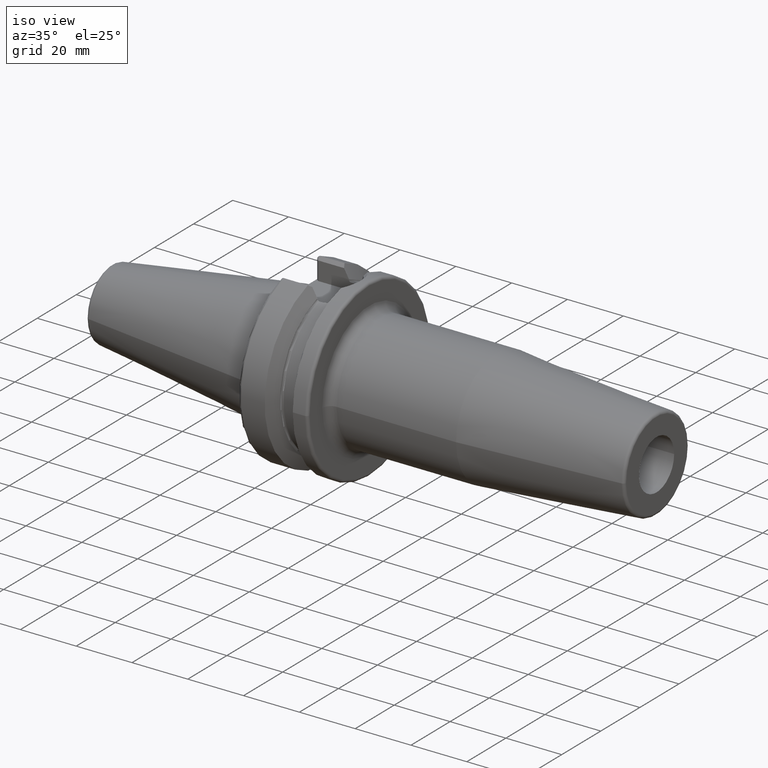
[diagram: clean part render]
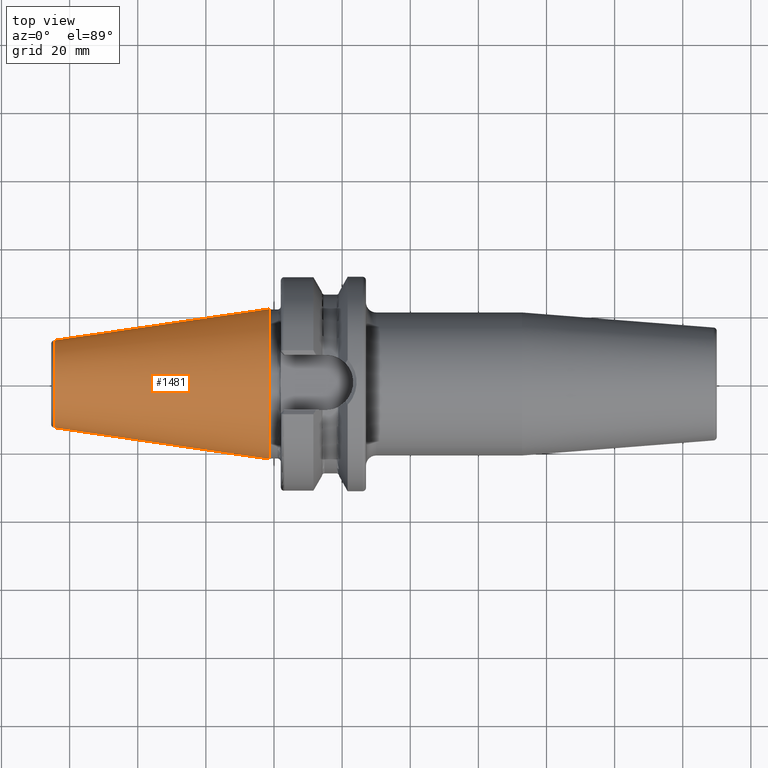
[diagram: tour spotlight — one face highlighted and labeled with its STEP entity id]
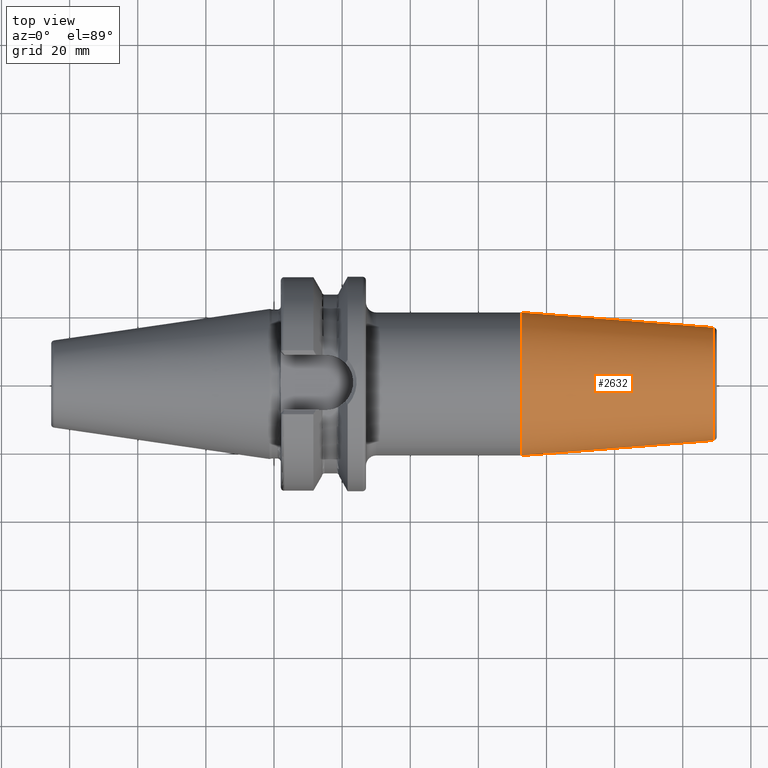
[diagram: tour spotlight — one face highlighted and labeled with its STEP entity id]
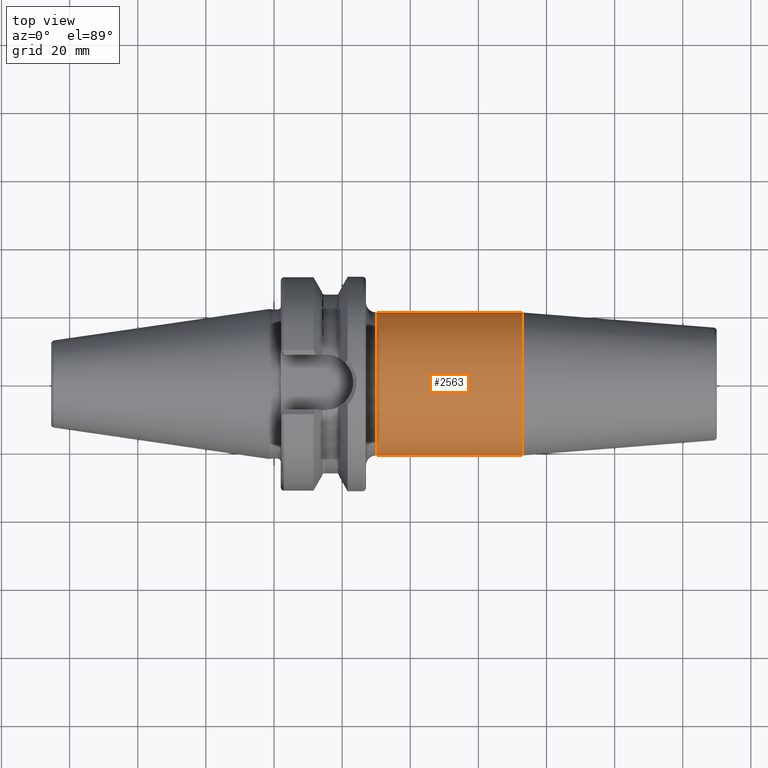
[diagram: tour spotlight — one face highlighted and labeled with its STEP entity id]
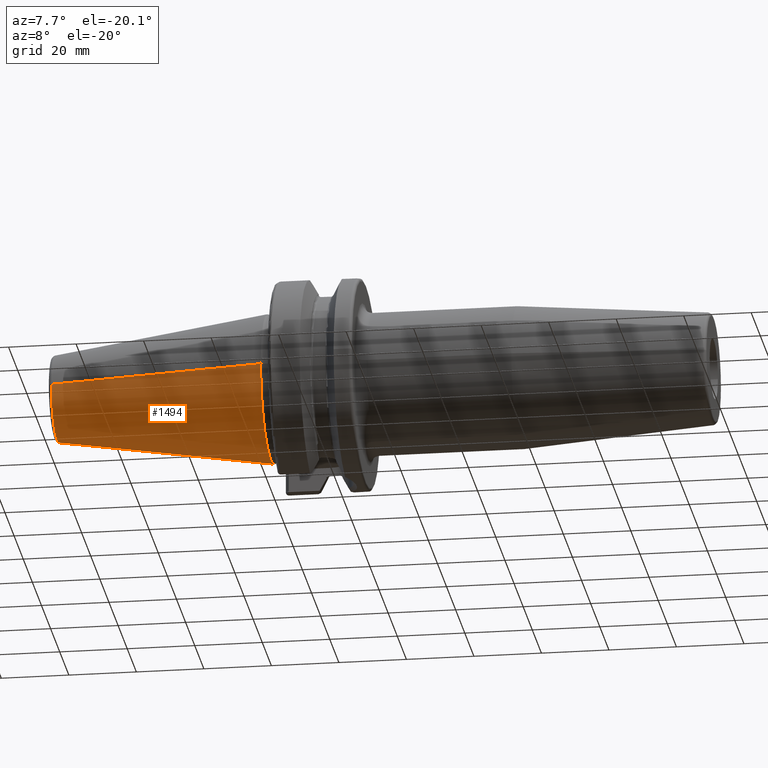
[diagram: tour spotlight — one face highlighted and labeled with its STEP entity id]
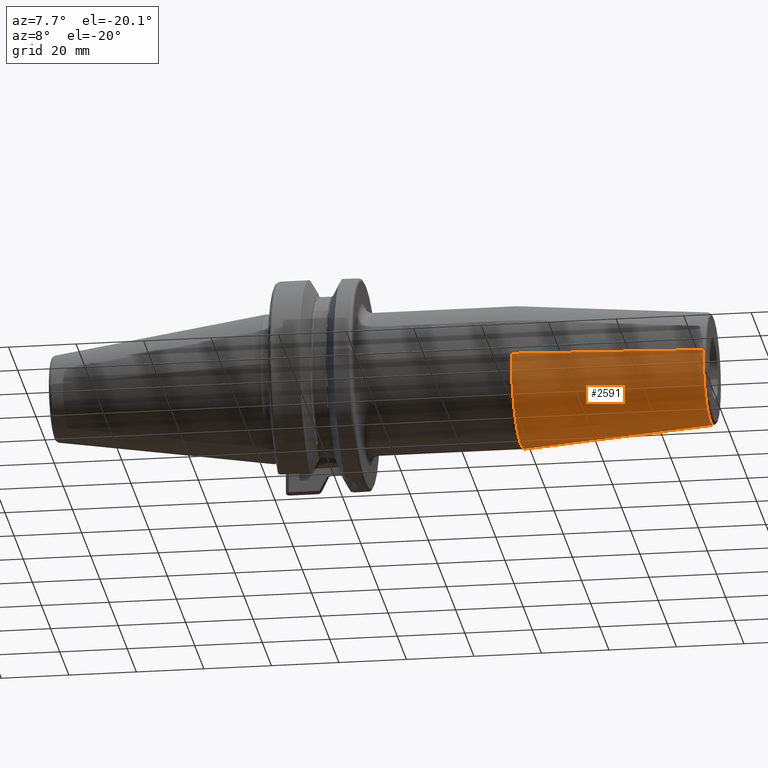
[diagram: tour spotlight — one face highlighted and labeled with its STEP entity id]
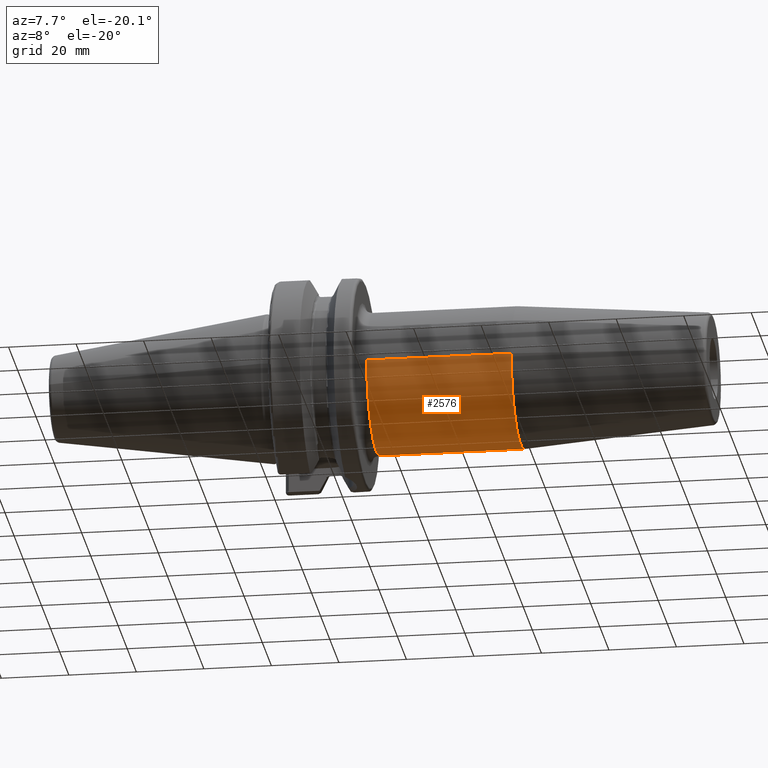
[diagram: tour spotlight — one face highlighted and labeled with its STEP entity id]
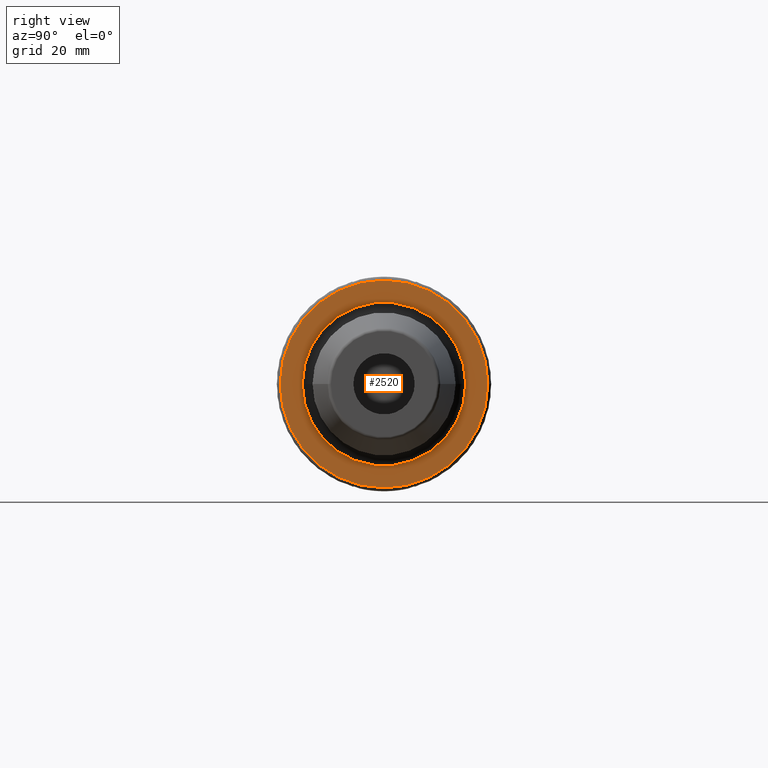
[diagram: tour spotlight — one face highlighted and labeled with its STEP entity id]
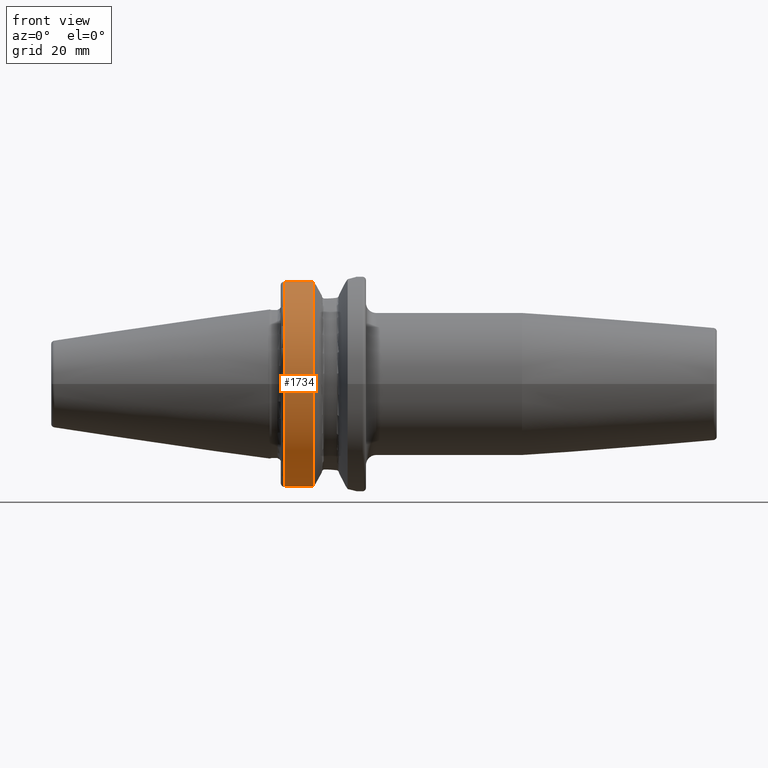
[diagram: tour spotlight — one face highlighted and labeled with its STEP entity id]
A machine part: a face-by-face anatomy tour. The part has 96 B-rep faces; the first image is the clean iso view, then the 8 largest visible faces are spotlighted one at a time (largest first), each with its STEP entity span.

Face 1 — top view, entity #1481. In plain terms, the highlighted conical surface has half-angle 8.298 deg.
Definition (entity closure, byte-faithful):
#37=CARTESIAN_POINT('',(-6.454431866917E1,0.E0,0.E0));
#38=DIRECTION('',(1.E0,0.E0,0.E0));
#39=DIRECTION('',(0.E0,1.E0,0.E0));
#40=AXIS2_PLACEMENT_3D('',#37,#38,#39);
#42=CARTESIAN_POINT('',(-1.266732031557E0,0.E0,0.E0));
#43=DIRECTION('',(1.E0,0.E0,0.E0));
#44=DIRECTION('',(0.E0,1.E0,0.E0));
#45=AXIS2_PLACEMENT_3D('',#42,#43,#44);
#47=DIRECTION('',(-9.895312636440E-1,-1.443186691705E-1,0.E0));
#48=VECTOR('',#47,6.394703124850E1);
#49=CARTESIAN_POINT('',(-1.266732031557E0,2.204025284980E1,0.E0));
#50=LINE('',#49,#48);
#51=DIRECTION('',(-9.895312636440E-1,1.443186691705E-1,0.E0));
#52=VECTOR('',#51,6.394703124850E1);
#53=CARTESIAN_POINT('',(-1.266732031557E0,-2.204025284980E1,0.E0));
#54=LINE('',#53,#52);
#1170=CARTESIAN_POINT('',(-6.454431866917E1,1.281150240261E1,0.E0));
#1172=VERTEX_POINT('',#1170);
#1174=CARTESIAN_POINT('',(-6.454431866917E1,-1.281150240261E1,0.E0));
#1176=VERTEX_POINT('',#1174);
#1389=CARTESIAN_POINT('',(-1.266732031557E0,2.204025284980E1,0.E0));
#1390=VERTEX_POINT('',#1389);
#1391=CARTESIAN_POINT('',(-1.266732031557E0,-2.204025284980E1,0.E0));
#1392=VERTEX_POINT('',#1391);
#1467=CARTESIAN_POINT('',(-3.290552535036E1,0.E0,0.E0));
#1468=DIRECTION('',(1.E0,0.E0,0.E0));
#1469=DIRECTION('',(0.E0,-1.E0,0.E0));
#1470=AXIS2_PLACEMENT_3D('',#1467,#1468,#1469);
#1471=CONICAL_SURFACE('',#1470,1.742587762621E1,8.297826828206E0);
#1473=ORIENTED_EDGE('',*,*,#1472,.F.);
#1475=ORIENTED_EDGE('',*,*,#1474,.T.);
#1477=ORIENTED_EDGE('',*,*,#1476,.T.);
#1478=ORIENTED_EDGE('',*,*,#1460,.F.);
#1479=EDGE_LOOP('',(#1473,#1475,#1477,#1478));
#1480=FACE_OUTER_BOUND('',#1479,.F.);
#1481=ADVANCED_FACE('',(#1480),#1471,.T.);
#41=CIRCLE('',#40,1.281150240261E1);
#46=CIRCLE('',#45,2.204025284980E1);
#1460=EDGE_CURVE('',#1172,#1176,#41,.T.);
#1472=EDGE_CURVE('',#1390,#1172,#50,.T.);
#1474=EDGE_CURVE('',#1390,#1392,#46,.T.);
#1476=EDGE_CURVE('',#1392,#1176,#54,.T.);

Face 2 — top view, entity #2632. In plain terms, the highlighted conical surface has half-angle 4.5 deg.
Definition (entity closure, byte-faithful):
#861=CARTESIAN_POINT('',(7.282207868721E1,0.E0,0.E0));
#862=DIRECTION('',(1.E0,0.E0,0.E0));
#863=DIRECTION('',(0.E0,1.E0,0.E0));
#864=AXIS2_PLACEMENT_3D('',#861,#862,#863);
#889=DIRECTION('',(-9.969173337331E-1,7.845909572785E-2,6.390930172239E-14));
#890=VECTOR('',#889,5.643033630266E1);
#891=CARTESIAN_POINT('',(1.290784590957E2,1.657252684207E1,
-3.603851630785E-12));
#892=LINE('',#891,#890);
#893=DIRECTION('',(-9.969173337331E-1,-7.845909572785E-2,-6.390031032996E-14));
#894=VECTOR('',#893,5.643033630266E1);
#895=CARTESIAN_POINT('',(1.290784590957E2,-1.657252684207E1,
3.603344243486E-12));
#896=LINE('',#895,#894);
#907=CARTESIAN_POINT('',(1.290784590957E2,0.E0,0.E0));
#908=DIRECTION('',(-1.E0,0.E0,0.E0));
#909=DIRECTION('',(0.E0,-1.E0,0.E0));
#910=AXIS2_PLACEMENT_3D('',#907,#908,#909);
#1409=CARTESIAN_POINT('',(7.282207868721E1,2.1E1,0.E0));
#1410=VERTEX_POINT('',#1409);
#1411=CARTESIAN_POINT('',(7.282207868721E1,-2.1E1,0.E0));
#1412=VERTEX_POINT('',#1411);
#1413=CARTESIAN_POINT('',(1.290784590957E2,1.657252684207E1,0.E0));
#1414=CARTESIAN_POINT('',(1.290784590957E2,-1.657252684207E1,0.E0));
#1415=VERTEX_POINT('',#1413);
#1416=VERTEX_POINT('',#1414);
#2621=CARTESIAN_POINT('',(1.009502688915E2,0.E0,0.E0));
#2622=DIRECTION('',(-1.E0,0.E0,0.E0));
#2623=DIRECTION('',(0.E0,1.E0,0.E0));
#2624=AXIS2_PLACEMENT_3D('',#2621,#2622,#2623);
#2625=CONICAL_SURFACE('',#2624,1.878626342104E1,4.5E0);
#2626=ORIENTED_EDGE('',*,*,#2612,.F.);
#2627=ORIENTED_EDGE('',*,*,#2587,.T.);
#2628=ORIENTED_EDGE('',*,*,#2557,.F.);
#2629=ORIENTED_EDGE('',*,*,#2584,.F.);
#2630=EDGE_LOOP('',(#2626,#2627,#2628,#2629));
#2631=FACE_OUTER_BOUND('',#2630,.F.);
#2632=ADVANCED_FACE('',(#2631),#2625,.T.);
#865=CIRCLE('',#864,2.1E1);
#911=CIRCLE('',#910,1.657252684207E1);
#2557=EDGE_CURVE('',#1410,#1412,#865,.T.);
#2584=EDGE_CURVE('',#1415,#1410,#892,.T.);
#2587=EDGE_CURVE('',#1416,#1412,#896,.T.);
#2612=EDGE_CURVE('',#1416,#1415,#911,.T.);

Face 3 — top view, entity #2563. In plain terms, the highlighted cylindrical surface (partial cylindrical patch) has radius 21 mm, axis along (1, 0, 0).
Definition (entity closure, byte-faithful):
#856=CARTESIAN_POINT('',(3.E1,0.E0,0.E0));
#857=DIRECTION('',(1.E0,0.E0,0.E0));
#858=DIRECTION('',(0.E0,1.E0,0.E0));
#859=AXIS2_PLACEMENT_3D('',#856,#857,#858);
#861=CARTESIAN_POINT('',(7.282207868721E1,0.E0,0.E0));
#862=DIRECTION('',(1.E0,0.E0,0.E0));
#863=DIRECTION('',(0.E0,1.E0,0.E0));
#864=AXIS2_PLACEMENT_3D('',#861,#862,#863);
#871=DIRECTION('',(-1.E0,0.E0,-3.121221954443E-14));
#872=VECTOR('',#871,4.282207868721E1);
#873=CARTESIAN_POINT('',(7.282207868721E1,-2.1E1,0.E0));
#874=LINE('',#873,#872);
#880=DIRECTION('',(-1.E0,0.E0,3.114081538233E-14));
#881=VECTOR('',#880,4.282207868721E1);
#882=CARTESIAN_POINT('',(7.282207868721E1,2.1E1,0.E0));
#883=LINE('',#882,#881);
#1405=CARTESIAN_POINT('',(3.E1,-2.1E1,0.E0));
#1406=CARTESIAN_POINT('',(3.E1,2.1E1,0.E0));
#1407=VERTEX_POINT('',#1405);
#1408=VERTEX_POINT('',#1406);
#1409=CARTESIAN_POINT('',(7.282207868721E1,2.1E1,0.E0));
#1410=VERTEX_POINT('',#1409);
#1411=CARTESIAN_POINT('',(7.282207868721E1,-2.1E1,0.E0));
#1412=VERTEX_POINT('',#1411);
#2549=CARTESIAN_POINT('',(2.185E1,0.E0,0.E0));
#2550=DIRECTION('',(1.E0,0.E0,0.E0));
#2551=DIRECTION('',(0.E0,-1.E0,0.E0));
#2552=AXIS2_PLACEMENT_3D('',#2549,#2550,#2551);
#2553=CYLINDRICAL_SURFACE('',#2552,2.1E1);
#2554=ORIENTED_EDGE('',*,*,#2543,.F.);
#2556=ORIENTED_EDGE('',*,*,#2555,.F.);
#2558=ORIENTED_EDGE('',*,*,#2557,.T.);
#2560=ORIENTED_EDGE('',*,*,#2559,.T.);
#2561=EDGE_LOOP('',(#2554,#2556,#2558,#2560));
#2562=FACE_OUTER_BOUND('',#2561,.F.);
#2563=ADVANCED_FACE('',(#2562),#2553,.T.);
#860=CIRCLE('',#859,2.1E1);
#865=CIRCLE('',#864,2.1E1);
#2543=EDGE_CURVE('',#1408,#1407,#860,.T.);
#2555=EDGE_CURVE('',#1410,#1408,#883,.T.);
#2557=EDGE_CURVE('',#1410,#1412,#865,.T.);
#2559=EDGE_CURVE('',#1412,#1407,#874,.T.);

Face 4 — auxiliary view, entity #1494. In plain terms, the highlighted conical surface has half-angle 8.298 deg.
Definition (entity closure, byte-faithful):
#32=CARTESIAN_POINT('',(-6.454431866917E1,0.E0,0.E0));
#33=DIRECTION('',(-1.E0,0.E0,0.E0));
#34=DIRECTION('',(0.E0,1.E0,0.E0));
#35=AXIS2_PLACEMENT_3D('',#32,#33,#34);
#47=DIRECTION('',(-9.895312636440E-1,-1.443186691705E-1,0.E0));
#48=VECTOR('',#47,6.394703124850E1);
#49=CARTESIAN_POINT('',(-1.266732031557E0,2.204025284980E1,0.E0));
#50=LINE('',#49,#48);
#51=DIRECTION('',(-9.895312636440E-1,1.443186691705E-1,0.E0));
#52=VECTOR('',#51,6.394703124850E1);
#53=CARTESIAN_POINT('',(-1.266732031557E0,-2.204025284980E1,0.E0));
#54=LINE('',#53,#52);
#55=CARTESIAN_POINT('',(-1.266732031557E0,0.E0,0.E0));
#56=DIRECTION('',(-1.E0,0.E0,0.E0));
#57=DIRECTION('',(0.E0,1.E0,0.E0));
#58=AXIS2_PLACEMENT_3D('',#55,#56,#57);
#1170=CARTESIAN_POINT('',(-6.454431866917E1,1.281150240261E1,0.E0));
#1172=VERTEX_POINT('',#1170);
#1174=CARTESIAN_POINT('',(-6.454431866917E1,-1.281150240261E1,0.E0));
#1176=VERTEX_POINT('',#1174);
#1389=CARTESIAN_POINT('',(-1.266732031557E0,2.204025284980E1,0.E0));
#1390=VERTEX_POINT('',#1389);
#1391=CARTESIAN_POINT('',(-1.266732031557E0,-2.204025284980E1,0.E0));
#1392=VERTEX_POINT('',#1391);
#1482=CARTESIAN_POINT('',(-3.290552535036E1,0.E0,0.E0));
#1483=DIRECTION('',(1.E0,0.E0,0.E0));
#1484=DIRECTION('',(0.E0,-1.E0,0.E0));
#1485=AXIS2_PLACEMENT_3D('',#1482,#1483,#1484);
#1486=CONICAL_SURFACE('',#1485,1.742587762621E1,8.297826828206E0);
#1487=ORIENTED_EDGE('',*,*,#1472,.T.);
#1488=ORIENTED_EDGE('',*,*,#1449,.T.);
#1489=ORIENTED_EDGE('',*,*,#1476,.F.);
#1491=ORIENTED_EDGE('',*,*,#1490,.F.);
#1492=EDGE_LOOP('',(#1487,#1488,#1489,#1491));
#1493=FACE_OUTER_BOUND('',#1492,.F.);
#1494=ADVANCED_FACE('',(#1493),#1486,.T.);
#36=CIRCLE('',#35,1.281150240261E1);
#59=CIRCLE('',#58,2.204025284980E1);
#1449=EDGE_CURVE('',#1172,#1176,#36,.T.);
#1472=EDGE_CURVE('',#1390,#1172,#50,.T.);
#1476=EDGE_CURVE('',#1392,#1176,#54,.T.);
#1490=EDGE_CURVE('',#1390,#1392,#59,.T.);

Face 5 — auxiliary view, entity #2591. In plain terms, the highlighted conical surface has half-angle 4.5 deg.
Definition (entity closure, byte-faithful):
#875=CARTESIAN_POINT('',(7.282207868721E1,0.E0,0.E0));
#876=DIRECTION('',(-1.E0,0.E0,0.E0));
#877=DIRECTION('',(0.E0,1.E0,0.E0));
#878=AXIS2_PLACEMENT_3D('',#875,#876,#877);
#884=CARTESIAN_POINT('',(1.290784590957E2,0.E0,0.E0));
#885=DIRECTION('',(-1.E0,0.E0,0.E0));
#886=DIRECTION('',(0.E0,1.E0,0.E0));
#887=AXIS2_PLACEMENT_3D('',#884,#885,#886);
#889=DIRECTION('',(-9.969173337331E-1,7.845909572785E-2,6.390930172239E-14));
#890=VECTOR('',#889,5.643033630266E1);
#891=CARTESIAN_POINT('',(1.290784590957E2,1.657252684207E1,
-3.603851630785E-12));
#892=LINE('',#891,#890);
#893=DIRECTION('',(-9.969173337331E-1,-7.845909572785E-2,-6.390031032996E-14));
#894=VECTOR('',#893,5.643033630266E1);
#895=CARTESIAN_POINT('',(1.290784590957E2,-1.657252684207E1,
3.603344243486E-12));
#896=LINE('',#895,#894);
#1409=CARTESIAN_POINT('',(7.282207868721E1,2.1E1,0.E0));
#1410=VERTEX_POINT('',#1409);
#1411=CARTESIAN_POINT('',(7.282207868721E1,-2.1E1,0.E0));
#1412=VERTEX_POINT('',#1411);
#1413=CARTESIAN_POINT('',(1.290784590957E2,1.657252684207E1,0.E0));
#1414=CARTESIAN_POINT('',(1.290784590957E2,-1.657252684207E1,0.E0));
#1415=VERTEX_POINT('',#1413);
#1416=VERTEX_POINT('',#1414);
#2577=CARTESIAN_POINT('',(1.009502688915E2,0.E0,0.E0));
#2578=DIRECTION('',(-1.E0,0.E0,0.E0));
#2579=DIRECTION('',(0.E0,1.E0,0.E0));
#2580=AXIS2_PLACEMENT_3D('',#2577,#2578,#2579);
#2581=CONICAL_SURFACE('',#2580,1.878626342104E1,4.5E0);
#2583=ORIENTED_EDGE('',*,*,#2582,.F.);
#2585=ORIENTED_EDGE('',*,*,#2584,.T.);
#2586=ORIENTED_EDGE('',*,*,#2571,.T.);
#2588=ORIENTED_EDGE('',*,*,#2587,.F.);
#2589=EDGE_LOOP('',(#2583,#2585,#2586,#2588));
#2590=FACE_OUTER_BOUND('',#2589,.F.);
#2591=ADVANCED_FACE('',(#2590),#2581,.T.);
#879=CIRCLE('',#878,2.1E1);
#888=CIRCLE('',#887,1.657252684207E1);
#2571=EDGE_CURVE('',#1410,#1412,#879,.T.);
#2582=EDGE_CURVE('',#1415,#1416,#888,.T.);
#2584=EDGE_CURVE('',#1415,#1410,#892,.T.);
#2587=EDGE_CURVE('',#1416,#1412,#896,.T.);

Face 6 — auxiliary view, entity #2576. In plain terms, the highlighted cylindrical surface (partial cylindrical patch) has radius 21 mm, axis along (1, 0, 0).
Definition (entity closure, byte-faithful):
#866=CARTESIAN_POINT('',(3.E1,0.E0,0.E0));
#867=DIRECTION('',(1.E0,0.E0,0.E0));
#868=DIRECTION('',(0.E0,-1.E0,0.E0));
#869=AXIS2_PLACEMENT_3D('',#866,#867,#868);
#871=DIRECTION('',(-1.E0,0.E0,-3.121221954443E-14));
#872=VECTOR('',#871,4.282207868721E1);
#873=CARTESIAN_POINT('',(7.282207868721E1,-2.1E1,0.E0));
#874=LINE('',#873,#872);
#875=CARTESIAN_POINT('',(7.282207868721E1,0.E0,0.E0));
#876=DIRECTION('',(-1.E0,0.E0,0.E0));
#877=DIRECTION('',(0.E0,1.E0,0.E0));
#878=AXIS2_PLACEMENT_3D('',#875,#876,#877);
#880=DIRECTION('',(-1.E0,0.E0,3.114081538233E-14));
#881=VECTOR('',#880,4.282207868721E1);
#882=CARTESIAN_POINT('',(7.282207868721E1,2.1E1,0.E0));
#883=LINE('',#882,#881);
#1405=CARTESIAN_POINT('',(3.E1,-2.1E1,0.E0));
#1406=CARTESIAN_POINT('',(3.E1,2.1E1,0.E0));
#1407=VERTEX_POINT('',#1405);
#1408=VERTEX_POINT('',#1406);
#1409=CARTESIAN_POINT('',(7.282207868721E1,2.1E1,0.E0));
#1410=VERTEX_POINT('',#1409);
#1411=CARTESIAN_POINT('',(7.282207868721E1,-2.1E1,0.E0));
#1412=VERTEX_POINT('',#1411);
#2564=CARTESIAN_POINT('',(2.185E1,0.E0,0.E0));
#2565=DIRECTION('',(1.E0,0.E0,0.E0));
#2566=DIRECTION('',(0.E0,-1.E0,0.E0));
#2567=AXIS2_PLACEMENT_3D('',#2564,#2565,#2566);
#2568=CYLINDRICAL_SURFACE('',#2567,2.1E1);
#2569=ORIENTED_EDGE('',*,*,#2529,.F.);
#2570=ORIENTED_EDGE('',*,*,#2559,.F.);
#2572=ORIENTED_EDGE('',*,*,#2571,.F.);
#2573=ORIENTED_EDGE('',*,*,#2555,.T.);
#2574=EDGE_LOOP('',(#2569,#2570,#2572,#2573));
#2575=FACE_OUTER_BOUND('',#2574,.F.);
#2576=ADVANCED_FACE('',(#2575),#2568,.T.);
#870=CIRCLE('',#869,2.1E1);
#879=CIRCLE('',#878,2.1E1);
#2529=EDGE_CURVE('',#1407,#1408,#870,.T.);
#2555=EDGE_CURVE('',#1410,#1408,#883,.T.);
#2559=EDGE_CURVE('',#1412,#1407,#874,.T.);
#2571=EDGE_CURVE('',#1410,#1412,#879,.T.);

Face 7 — right view, entity #2520. In plain terms, the highlighted planar face has unit normal (1, 0, 0).
Definition (entity closure, byte-faithful):
#816=CARTESIAN_POINT('',(2.7E1,0.E0,0.E0));
#817=DIRECTION('',(1.E0,0.E0,0.E0));
#818=DIRECTION('',(0.E0,1.E0,0.E0));
#819=AXIS2_PLACEMENT_3D('',#816,#817,#818);
#831=CARTESIAN_POINT('',(2.7E1,0.E0,0.E0));
#832=DIRECTION('',(-1.E0,0.E0,0.E0));
#833=DIRECTION('',(0.E0,1.E0,0.E0));
#834=AXIS2_PLACEMENT_3D('',#831,#832,#833);
#836=CARTESIAN_POINT('',(2.7E1,0.E0,0.E0));
#837=DIRECTION('',(1.E0,0.E0,0.E0));
#838=DIRECTION('',(0.E0,-1.E0,0.E0));
#839=AXIS2_PLACEMENT_3D('',#836,#837,#838);
#841=CARTESIAN_POINT('',(2.7E1,0.E0,0.E0));
#842=DIRECTION('',(1.E0,0.E0,0.E0));
#843=DIRECTION('',(0.E0,1.E0,0.E0));
#844=AXIS2_PLACEMENT_3D('',#841,#842,#843);
#1304=CARTESIAN_POINT('',(2.7E1,3.04875E1,0.E0));
#1305=VERTEX_POINT('',#1304);
#1306=CARTESIAN_POINT('',(2.7E1,-3.04875E1,0.E0));
#1307=VERTEX_POINT('',#1306);
#1401=CARTESIAN_POINT('',(2.7E1,-2.4E1,0.E0));
#1402=CARTESIAN_POINT('',(2.7E1,2.4E1,0.E0));
#1403=VERTEX_POINT('',#1401);
#1404=VERTEX_POINT('',#1402);
#2505=CARTESIAN_POINT('',(2.7E1,0.E0,0.E0));
#2506=DIRECTION('',(1.E0,0.E0,0.E0));
#2507=DIRECTION('',(0.E0,-1.E0,0.E0));
#2508=AXIS2_PLACEMENT_3D('',#2505,#2506,#2507);
#2509=PLANE('',#2508);
#2510=ORIENTED_EDGE('',*,*,#2500,.T.);
#2511=ORIENTED_EDGE('',*,*,#2484,.F.);
#2512=EDGE_LOOP('',(#2510,#2511));
#2513=FACE_OUTER_BOUND('',#2512,.F.);
#2515=ORIENTED_EDGE('',*,*,#2514,.T.);
#2517=ORIENTED_EDGE('',*,*,#2516,.T.);
#2518=EDGE_LOOP('',(#2515,#2517));
#2519=FACE_BOUND('',#2518,.F.);
#2520=ADVANCED_FACE('',(#2513,#2519),#2509,.T.);
#820=CIRCLE('',#819,3.04875E1);
#835=CIRCLE('',#834,3.04875E1);
#840=CIRCLE('',#839,2.4E1);
#845=CIRCLE('',#844,2.4E1);
#2484=EDGE_CURVE('',#1305,#1307,#820,.T.);
#2500=EDGE_CURVE('',#1305,#1307,#835,.T.);
#2514=EDGE_CURVE('',#1403,#1404,#840,.T.);
#2516=EDGE_CURVE('',#1404,#1403,#845,.T.);

Face 8 — front view, entity #1734. In plain terms, the highlighted cylindrical surface (partial cylindrical patch) has radius 31.4875 mm, axis along (1, 0, 0).
Definition (entity closure, byte-faithful):
#210=CARTESIAN_POINT('',(1.157272253103E1,0.E0,0.E0));
#211=DIRECTION('',(1.E0,0.E0,0.E0));
#212=DIRECTION('',(0.E0,-2.983189831898E-1,9.544662300305E-1));
#213=AXIS2_PLACEMENT_3D('',#210,#211,#212);
#215=DIRECTION('',(9.999999999998E-1,-3.572441507671E-7,4.802508939409E-7));
#216=VECTOR('',#215,8.572722533299E0);
#217=CARTESIAN_POINT('',(2.999999997734E0,-9.052776400559E0,-3.015808496187E1));
#218=LINE('',#217,#216);
#219=CARTESIAN_POINT('',(3.E0,0.E0,0.E0));
#220=DIRECTION('',(-1.E0,0.E0,0.E0));
#221=DIRECTION('',(0.E0,-2.875039130802E-1,-9.577794631143E-1));
#222=AXIS2_PLACEMENT_3D('',#219,#220,#221);
#224=DIRECTION('',(-9.999999999911E-1,2.496639374553E-6,3.395432034657E-6));
#225=VECTOR('',#224,8.572722551500E0);
#226=CARTESIAN_POINT('',(1.157272253103E1,-9.393318983190E0,3.005375541808E1));
#227=LINE('',#226,#225);
#606=CARTESIAN_POINT('',(2.999999997734E0,-9.052776400559E0,-3.015808496187E1));
#1340=CARTESIAN_POINT('',(1.157272253103E1,-9.393318983190E0,3.005375541808E1));
#1341=CARTESIAN_POINT('',(1.157272253103E1,-9.052779463114E0,
-3.015808084481E1));
#1342=VERTEX_POINT('',#1340);
#1343=VERTEX_POINT('',#1341);
#1356=CARTESIAN_POINT('',(3.E0,-9.393347656107E0,3.005374645633E1));
#1357=VERTEX_POINT('',#1356);
#1378=VERTEX_POINT('',#606);
#1720=CARTESIAN_POINT('',(-7.002E1,0.E0,0.E0));
#1721=DIRECTION('',(1.E0,0.E0,0.E0));
#1722=DIRECTION('',(0.E0,-1.E0,0.E0));
#1723=AXIS2_PLACEMENT_3D('',#1720,#1721,#1722);
#1724=CYLINDRICAL_SURFACE('',#1723,3.14875E1);
#1725=ORIENTED_EDGE('',*,*,#1711,.T.);
#1727=ORIENTED_EDGE('',*,*,#1726,.F.);
#1729=ORIENTED_EDGE('',*,*,#1728,.T.);
#1731=ORIENTED_EDGE('',*,*,#1730,.F.);
#1732=EDGE_LOOP('',(#1725,#1727,#1729,#1731));
#1733=FACE_OUTER_BOUND('',#1732,.F.);
#1734=ADVANCED_FACE('',(#1733),#1724,.T.);
#214=CIRCLE('',#213,3.14875E1);
#223=CIRCLE('',#222,3.14875E1);
#1711=EDGE_CURVE('',#1342,#1343,#214,.T.);
#1726=EDGE_CURVE('',#1378,#1343,#218,.T.);
#1728=EDGE_CURVE('',#1378,#1357,#223,.T.);
#1730=EDGE_CURVE('',#1342,#1357,#227,.T.);